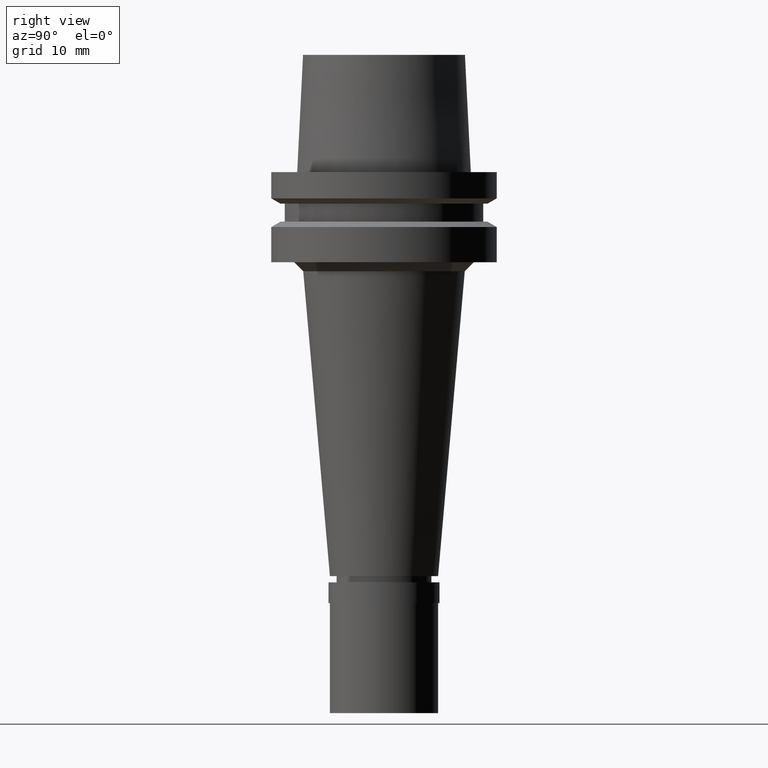
[diagram: clean part render]
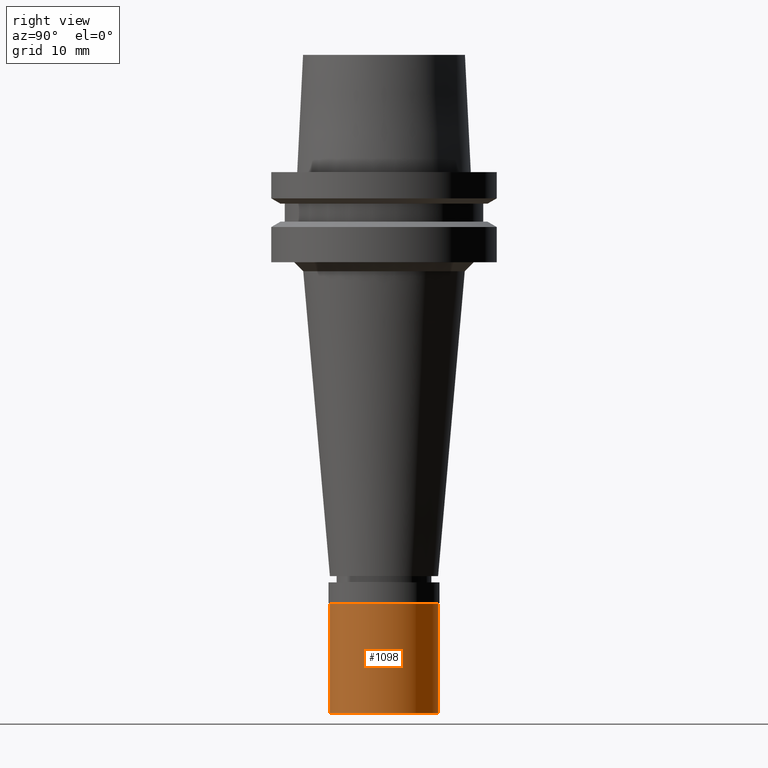
[diagram: same view with one face highlighted and labeled with its STEP entity id]
A machine part, right view. The second image highlights one B-rep face of the part: STEP entity #1098.
In plain terms, the highlighted cylindrical surface (partial cylindrical patch) has radius 6 mm, axis along (0, 0, 1).
Its self-contained STEP definition (entity closure, byte-faithful):
#126 = CYLINDRICAL_SURFACE ( 'NONE', #928, 6.000000000000000000 ) ;
#162 = DIRECTION ( 'NONE',  ( 0.0000000000000000000, 1.000000000000000000, 0.0000000000000000000 ) ) ;
#220 = CIRCLE ( 'NONE', #2136, 6.000000000000000000 ) ;
#242 = VERTEX_POINT ( 'NONE', #1081 ) ;
#381 = CARTESIAN_POINT ( 'NONE',  ( 0.0000000000000000000, 6.000000000000000000, -2.299999999999999822 ) ) ;
#399 = ORIENTED_EDGE ( 'NONE', *, *, #2567, .T. ) ;
#476 = DIRECTION ( 'NONE',  ( 0.0000000000000000000, -1.000000000000000000, 0.0000000000000000000 ) ) ;
#536 = LINE ( 'NONE', #702, #677 ) ;
#557 = ORIENTED_EDGE ( 'NONE', *, *, #1193, .F. ) ;
#645 = DIRECTION ( 'NONE',  ( 0.0000000000000000000, 0.0000000000000000000, -1.000000000000000000 ) ) ;
#677 = VECTOR ( 'NONE', #1528, 1000.000000000000000 ) ;
#702 = CARTESIAN_POINT ( 'NONE',  ( 0.0000000000000000000, 6.000000000000000000, -2.299999999999999822 ) ) ;
#709 = CIRCLE ( 'NONE', #2568, 6.000000000000000000 ) ;
#917 = FACE_OUTER_BOUND ( 'NONE', #2342, .T. ) ;
#928 = AXIS2_PLACEMENT_3D ( 'NONE', #957, #2384, #2602 ) ;
#931 = VECTOR ( 'NONE', #645, 1000.000000000000000 ) ;
#957 = CARTESIAN_POINT ( 'NONE',  ( 0.0000000000000000000, 0.0000000000000000000, -15.22500000000000142 ) ) ;
#1047 = EDGE_CURVE ( 'NONE', #1883, #242, #1670, .T. ) ;
#1081 = CARTESIAN_POINT ( 'NONE',  ( 0.0000000000000000000, -6.000000000000000000, -14.50000000000000000 ) ) ;
#1098 = ADVANCED_FACE ( 'NONE', ( #917 ), #126, .T. ) ;
#1193 = EDGE_CURVE ( 'NONE', #2419, #2286, #536, .T. ) ;
#1222 = ORIENTED_EDGE ( 'NONE', *, *, #1047, .T. ) ;
#1224 = CARTESIAN_POINT ( 'NONE',  ( 0.0000000000000000000, 0.0000000000000000000, -2.299999999999999822 ) ) ;
#1528 = DIRECTION ( 'NONE',  ( 0.0000000000000000000, 0.0000000000000000000, -1.000000000000000000 ) ) ;
#1619 = CARTESIAN_POINT ( 'NONE',  ( 0.0000000000000000000, 6.000000000000000000, -14.50000000000000000 ) ) ;
#1670 = LINE ( 'NONE', #2514, #931 ) ;
#1808 = DIRECTION ( 'NONE',  ( 0.0000000000000000000, 0.0000000000000000000, -1.000000000000000000 ) ) ;
#1883 = VERTEX_POINT ( 'NONE', #2257 ) ;
#2136 = AXIS2_PLACEMENT_3D ( 'NONE', #1224, #1808, #162 ) ;
#2257 = CARTESIAN_POINT ( 'NONE',  ( 0.0000000000000000000, -6.000000000000000000, -2.299999999999999822 ) ) ;
#2275 = EDGE_CURVE ( 'NONE', #2419, #1883, #220, .T. ) ;
#2282 = ORIENTED_EDGE ( 'NONE', *, *, #2275, .T. ) ;
#2286 = VERTEX_POINT ( 'NONE', #1619 ) ;
#2342 = EDGE_LOOP ( 'NONE', ( #2282, #1222, #399, #557 ) ) ;
#2384 = DIRECTION ( 'NONE',  ( 0.0000000000000000000, 0.0000000000000000000, 1.000000000000000000 ) ) ;
#2419 = VERTEX_POINT ( 'NONE', #381 ) ;
#2513 = DIRECTION ( 'NONE',  ( 0.0000000000000000000, 0.0000000000000000000, 1.000000000000000000 ) ) ;
#2514 = CARTESIAN_POINT ( 'NONE',  ( 0.0000000000000000000, -6.000000000000000000, -2.299999999999999822 ) ) ;
#2556 = CARTESIAN_POINT ( 'NONE',  ( 0.0000000000000000000, 0.0000000000000000000, -14.50000000000000000 ) ) ;
#2567 = EDGE_CURVE ( 'NONE', #242, #2286, #709, .T. ) ;
#2568 = AXIS2_PLACEMENT_3D ( 'NONE', #2556, #2513, #476 ) ;
#2602 = DIRECTION ( 'NONE',  ( 0.0000000000000000000, 1.000000000000000000, 0.0000000000000000000 ) ) ;